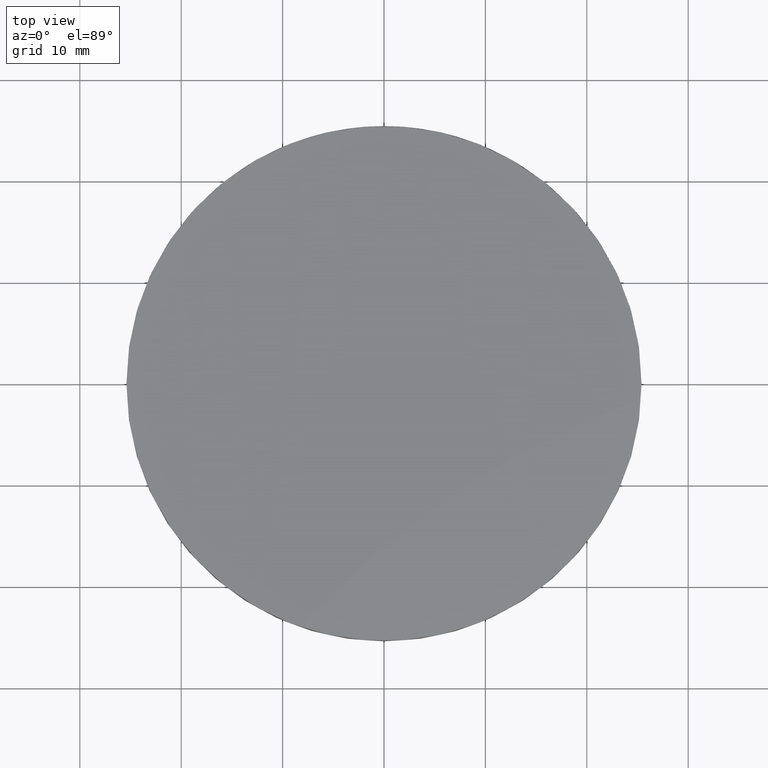
[diagram: clean part render]
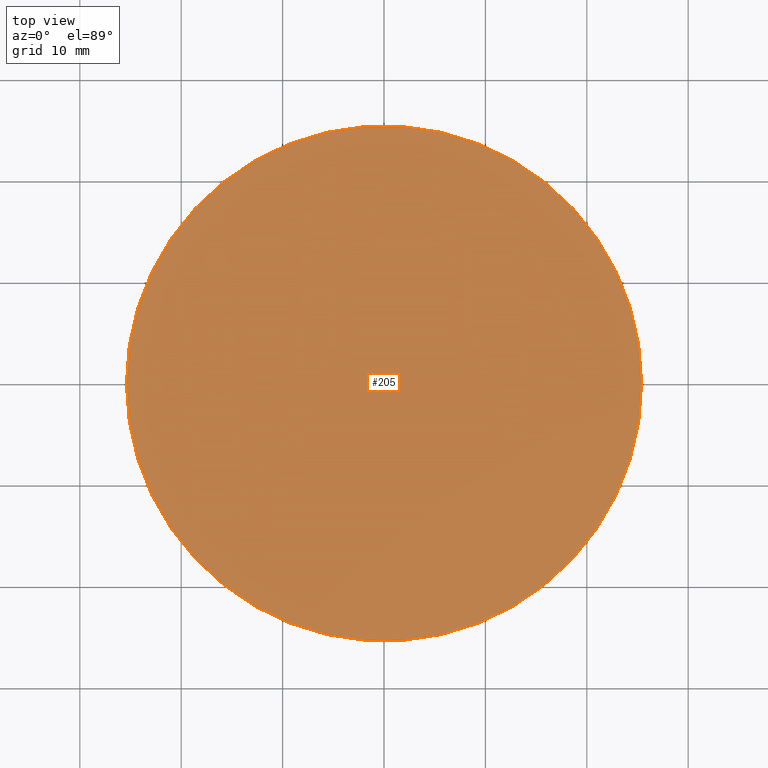
[diagram: same view with one face highlighted and labeled with its STEP entity id]
A machine part, top view. The second image highlights one B-rep face of the part: STEP entity #205.
In plain terms, the highlighted planar face has unit normal (0, 0, 1).
Its self-contained STEP definition (entity closure, byte-faithful):
#2 = EDGE_CURVE ( 'NONE', #72, #185, #64, .T. ) ;
#8 = AXIS2_PLACEMENT_3D ( 'NONE', #42, #83, #117 ) ;
#12 = EDGE_LOOP ( 'NONE', ( #121, #143 ) ) ;
#35 = AXIS2_PLACEMENT_3D ( 'NONE', #69, #215, #211 ) ;
#41 = CIRCLE ( 'NONE', #35, 25.39999999999999900 ) ;
#42 = CARTESIAN_POINT ( 'NONE',  ( 9.992007221626412800E-016, 4.884981308350691100E-015, 6.500000000000000900 ) ) ;
#50 = DIRECTION ( 'NONE',  ( 0.0000000000000000000, 0.0000000000000000000, 1.000000000000000000 ) ) ;
#64 = CIRCLE ( 'NONE', #8, 25.39999999999999900 ) ;
#69 = CARTESIAN_POINT ( 'NONE',  ( 9.992007221626412800E-016, 4.884981308350691100E-015, 6.500000000000000900 ) ) ;
#72 = VERTEX_POINT ( 'NONE', #122 ) ;
#80 = FACE_OUTER_BOUND ( 'NONE', #12, .T. ) ;
#83 = DIRECTION ( 'NONE',  ( -0.0000000000000000000, -0.0000000000000000000, -1.000000000000000000 ) ) ;
#106 = DIRECTION ( 'NONE',  ( 1.000000000000000000, 0.0000000000000000000, -0.0000000000000000000 ) ) ;
#117 = DIRECTION ( 'NONE',  ( 1.000000000000000000, 0.0000000000000000000, 0.0000000000000000000 ) ) ;
#121 = ORIENTED_EDGE ( 'NONE', *, *, #2, .F. ) ;
#122 = CARTESIAN_POINT ( 'NONE',  ( 25.39999999999999900, 4.884981308350691100E-015, 6.500000000000000900 ) ) ;
#124 = EDGE_CURVE ( 'NONE', #185, #72, #41, .T. ) ;
#128 = CARTESIAN_POINT ( 'NONE',  ( -25.39999999999999900, 7.995584178184967200E-015, 6.500000000000000900 ) ) ;
#143 = ORIENTED_EDGE ( 'NONE', *, *, #124, .F. ) ;
#172 = AXIS2_PLACEMENT_3D ( 'NONE', #217, #50, #106 ) ;
#184 = PLANE ( 'NONE',  #172 ) ;
#185 = VERTEX_POINT ( 'NONE', #128 ) ;
#205 = ADVANCED_FACE ( 'NONE', ( #80 ), #184, .T. ) ;
#211 = DIRECTION ( 'NONE',  ( 1.000000000000000000, 0.0000000000000000000, 0.0000000000000000000 ) ) ;
#215 = DIRECTION ( 'NONE',  ( -0.0000000000000000000, -0.0000000000000000000, -1.000000000000000000 ) ) ;
#217 = CARTESIAN_POINT ( 'NONE',  ( 0.0000000000000000000, 52.02000000000000300, 6.500000000000000900 ) ) ;